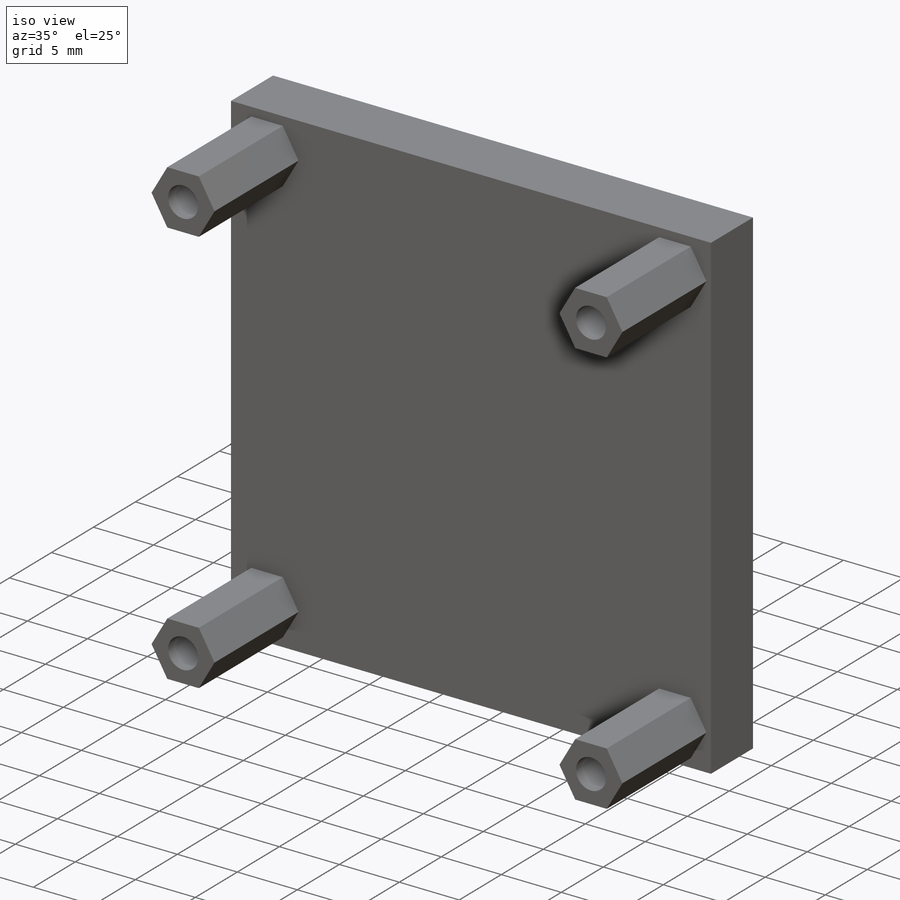
[diagram: iso view]
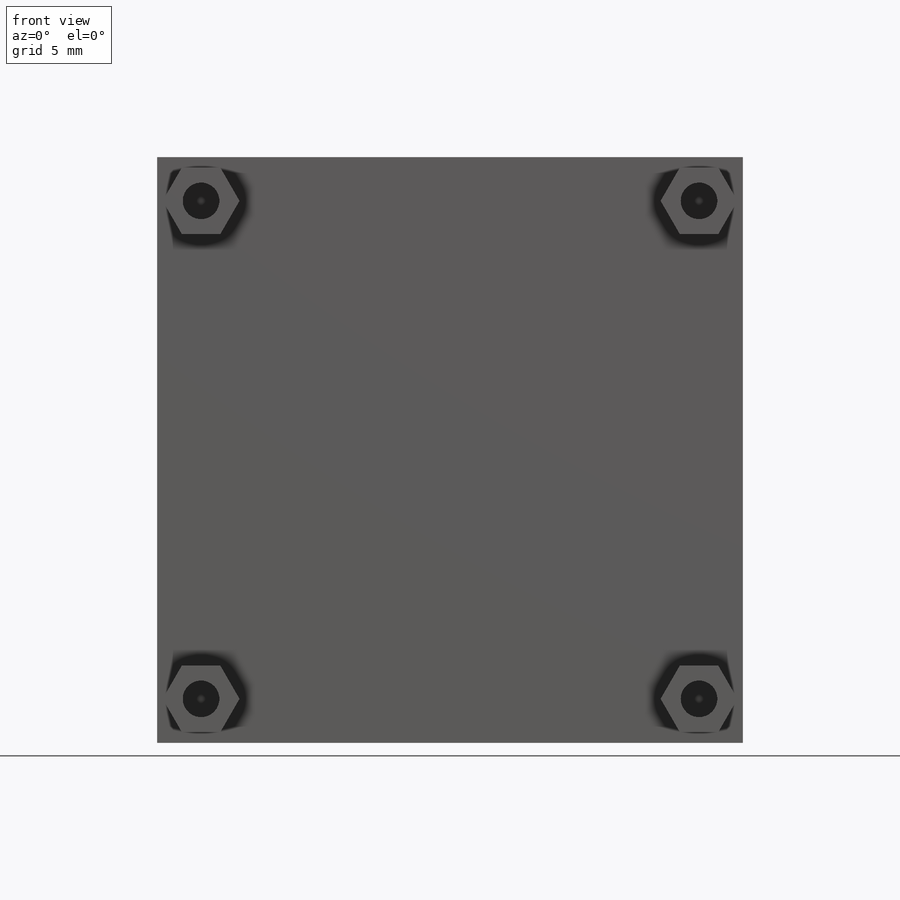
[diagram: front view]
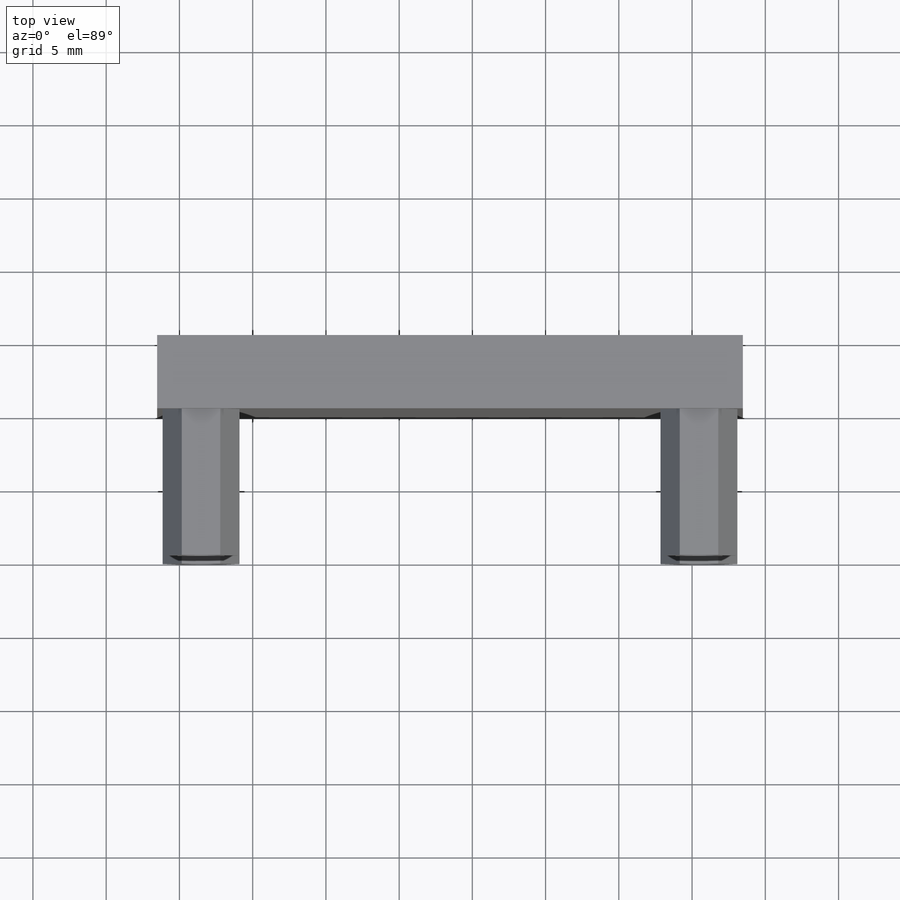
[diagram: top view]
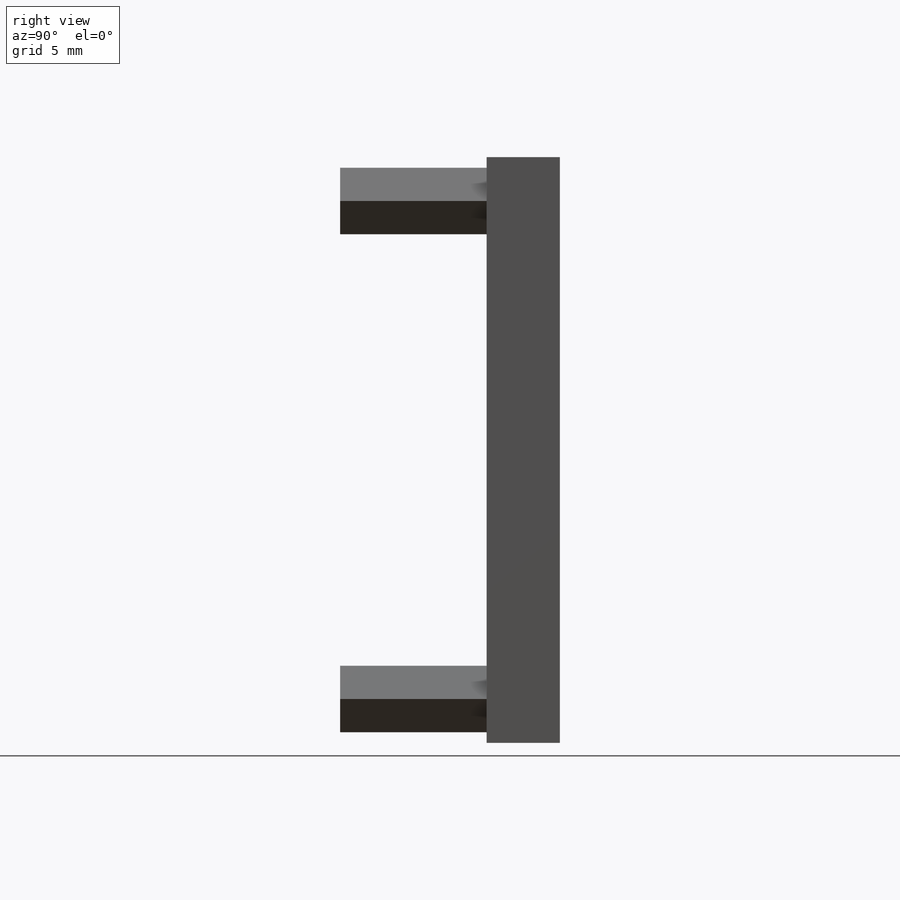
[diagram: right view]
SOLIDWORKS PART (.sldprt)
format: sldprt  version: not decoded by parser v0  size: 231,936 bytes
history: native  units: mm
features: sketch x4, extrude x4, material x1 (+13 scaffold rows collapsed)
feature tree (22):
  scaffold x13  (default folders/planes/origin — collapsed)
  material  "Material <not specified>"
  sketch  "Sketch1"  dims[D1=40.0mm D2=40.0mm]
  extrude  "Boss-Extrude1"  Depth=3.2mm
  sketch  "Sketch2"
  extrude  "Boss-Extrude2"  Depth=1mm
  sketch  "Sketch3"
  extrude  "Boss-Extrude3"  Depth=0.8mm
  sketch  "Sketch4"  dims[c1.D5=~1.09905mm c1.D1=3.0mm c1.D2=3.0mm c1.D3=~57.15528mm c2.D3=~1.044557deg c3.D3=3.0mm c3.D4=3.0mm]
  extrude  "Boss-Extrude4"  Depth=10mm
decode coverage: 6 of 8 modeling features carry decoded parameters
note: ~ marks probable driven/reference dimensions
note: suppression state not decoded; provenance and decode notes live in map.json
